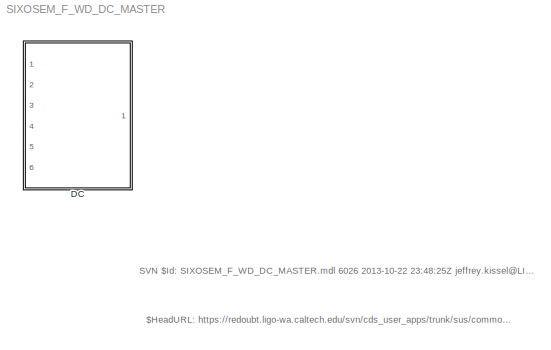
MODEL SIXOSEM_F_WD_DC_MASTER
KIND library
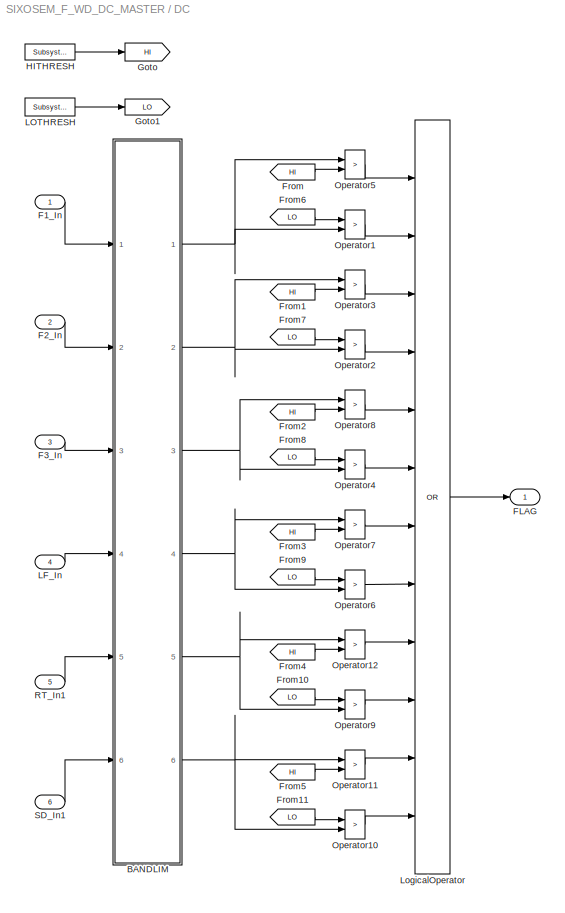
BLOCK [SubSystem] DC
  FunctionWithSeparateData = off
  MaskHideContents = off
  MinAlgLoopOccurrences = off
  Opaque = off
  Ports = [6, 1]
  PropExecContextOutsideSubsystem = off
  RTWSystemCode = Auto
  RequestExecContextInheritance = off
  SID = 1
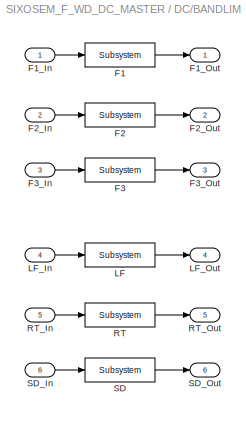
BLOCK [SubSystem] DC/BANDLIM
  FunctionWithSeparateData = off
  MaskHideContents = off
  MinAlgLoopOccurrences = off
  Opaque = off
  Ports = [6, 6]
  PropExecContextOutsideSubsystem = off
  RTWSystemCode = Auto
  RequestExecContextInheritance = off
  SID = 8
BLOCK [Reference] DC/BANDLIM/F1  REF=cdsFilt/Subsystem
  AttributesFormatString = %<Tag>
  Description = Purpose:                                                                                                                                                                                                                                  \nStandard CDS IIR filter module.                                                                                                                                     ...<+1302ch>  <repeated x6 — deduplicated; at blocks: F1, F2, F3, LF, RT, SD>
  FunctionWithSeparateData = off
  Ports = [1, 1]
  RTWMemSecDataConstants = Inherit from model
  RTWMemSecDataInternal = Inherit from model
  RTWMemSecDataParameters = Inherit from model
  RTWMemSecFuncExecute = Inherit from model
  RTWMemSecFuncInitTerm = Inherit from model
  SID = 15
  ShowPortLabels = FromPortIcon
  SourceBlock = cdsFilt/Subsystem
  SourceType = SubSystem
  SystemSampleTime = -1
  Tag = cdsFilt
BLOCK [Inport] DC/BANDLIM/F1_In
  IconDisplay = Port number
  SID = 9
BLOCK [Outport] DC/BANDLIM/F1_Out
  IconDisplay = Port number
  SID = 21
BLOCK [Reference] DC/BANDLIM/F2  REF=cdsFilt/Subsystem
  AttributesFormatString = %<Tag>
  FunctionWithSeparateData = off
  Ports = [1, 1]
  RTWMemSecDataConstants = Inherit from model
  RTWMemSecDataInternal = Inherit from model
  RTWMemSecDataParameters = Inherit from model
  RTWMemSecFuncExecute = Inherit from model
  RTWMemSecFuncInitTerm = Inherit from model
  SID = 16
  ShowPortLabels = FromPortIcon
  SourceBlock = cdsFilt/Subsystem
  SourceType = SubSystem
  SystemSampleTime = -1
  Tag = cdsFilt
BLOCK [Inport] DC/BANDLIM/F2_In
  IconDisplay = Port number
  Port = 2
  SID = 10
BLOCK [Outport] DC/BANDLIM/F2_Out
  IconDisplay = Port number
  Port = 2
  SID = 22
BLOCK [Reference] DC/BANDLIM/F3  REF=cdsFilt/Subsystem
  AttributesFormatString = %<Tag>
  FunctionWithSeparateData = off
  Ports = [1, 1]
  RTWMemSecDataConstants = Inherit from model
  RTWMemSecDataInternal = Inherit from model
  RTWMemSecDataParameters = Inherit from model
  RTWMemSecFuncExecute = Inherit from model
  RTWMemSecFuncInitTerm = Inherit from model
  SID = 17
  ShowPortLabels = FromPortIcon
  SourceBlock = cdsFilt/Subsystem
  SourceType = SubSystem
  SystemSampleTime = -1
  Tag = cdsFilt
BLOCK [Inport] DC/BANDLIM/F3_In
  IconDisplay = Port number
  Port = 3
  SID = 11
BLOCK [Outport] DC/BANDLIM/F3_Out
  IconDisplay = Port number
  Port = 3
  SID = 23
BLOCK [Reference] DC/BANDLIM/LF  REF=cdsFilt/Subsystem
  AttributesFormatString = %<Tag>
  FunctionWithSeparateData = off
  Ports = [1, 1]
  RTWMemSecDataConstants = Inherit from model
  RTWMemSecDataInternal = Inherit from model
  RTWMemSecDataParameters = Inherit from model
  RTWMemSecFuncExecute = Inherit from model
  RTWMemSecFuncInitTerm = Inherit from model
  SID = 18
  ShowPortLabels = FromPortIcon
  SourceBlock = cdsFilt/Subsystem
  SourceType = SubSystem
  SystemSampleTime = -1
  Tag = cdsFilt
BLOCK [Inport] DC/BANDLIM/LF_In
  IconDisplay = Port number
  Port = 4
  SID = 12
BLOCK [Outport] DC/BANDLIM/LF_Out
  IconDisplay = Port number
  Port = 4
  SID = 24
BLOCK [Reference] DC/BANDLIM/RT  REF=cdsFilt/Subsystem
  AttributesFormatString = %<Tag>
  FunctionWithSeparateData = off
  Ports = [1, 1]
  RTWMemSecDataConstants = Inherit from model
  RTWMemSecDataInternal = Inherit from model
  RTWMemSecDataParameters = Inherit from model
  RTWMemSecFuncExecute = Inherit from model
  RTWMemSecFuncInitTerm = Inherit from model
  SID = 19
  ShowPortLabels = FromPortIcon
  SourceBlock = cdsFilt/Subsystem
  SourceType = SubSystem
  SystemSampleTime = -1
  Tag = cdsFilt
BLOCK [Inport] DC/BANDLIM/RT_In
  IconDisplay = Port number
  Port = 5
  SID = 13
BLOCK [Outport] DC/BANDLIM/RT_Out
  IconDisplay = Port number
  Port = 5
  SID = 25
BLOCK [Reference] DC/BANDLIM/SD  REF=cdsFilt/Subsystem
  AttributesFormatString = %<Tag>
  FunctionWithSeparateData = off
  Ports = [1, 1]
  RTWMemSecDataConstants = Inherit from model
  RTWMemSecDataInternal = Inherit from model
  RTWMemSecDataParameters = Inherit from model
  RTWMemSecFuncExecute = Inherit from model
  RTWMemSecFuncInitTerm = Inherit from model
  SID = 20
  ShowPortLabels = FromPortIcon
  SourceBlock = cdsFilt/Subsystem
  SourceType = SubSystem
  SystemSampleTime = -1
  Tag = cdsFilt
BLOCK [Inport] DC/BANDLIM/SD_In
  IconDisplay = Port number
  Port = 6
  SID = 14
BLOCK [Outport] DC/BANDLIM/SD_Out
  IconDisplay = Port number
  Port = 6
  SID = 26
BLOCK [Inport] DC/F1_In
  IconDisplay = Port number
  SID = 2
BLOCK [Inport] DC/F2_In
  IconDisplay = Port number
  Port = 2
  SID = 3
BLOCK [Inport] DC/F3_In
  IconDisplay = Port number
  Port = 3
  SID = 4
BLOCK [Outport] DC/FLAG
  IconDisplay = Port number
  SID = 53
BLOCK [From] DC/From
  CloseFcn = tagdialog Close
  GotoTag = HI
  SID = 81
BLOCK [From] DC/From1
  CloseFcn = tagdialog Close
  GotoTag = HI
  SID = 82
BLOCK [From] DC/From10
  CloseFcn = tagdialog Close
  GotoTag = LO
  SID = 91
BLOCK [From] DC/From11
  CloseFcn = tagdialog Close
  GotoTag = LO
  SID = 92
BLOCK [From] DC/From2
  CloseFcn = tagdialog Close
  GotoTag = HI
  SID = 83
BLOCK [From] DC/From3
  CloseFcn = tagdialog Close
  GotoTag = HI
  SID = 84
BLOCK [From] DC/From4
  CloseFcn = tagdialog Close
  GotoTag = HI
  SID = 85
BLOCK [From] DC/From5
  CloseFcn = tagdialog Close
  GotoTag = HI
  SID = 86
BLOCK [From] DC/From6
  CloseFcn = tagdialog Close
  GotoTag = LO
  SID = 87
BLOCK [From] DC/From7
  CloseFcn = tagdialog Close
  GotoTag = LO
  SID = 88
BLOCK [From] DC/From8
  CloseFcn = tagdialog Close
  GotoTag = LO
  SID = 89
BLOCK [From] DC/From9
  CloseFcn = tagdialog Close
  GotoTag = LO
  SID = 90
BLOCK [Goto] DC/Goto
  GotoTag = HI
  SID = 79
BLOCK [Goto] DC/Goto1
  GotoTag = LO
  SID = 80
BLOCK [Reference] DC/HITHRESH  REF=cdsEpicsIn/Subsystem
  AttributesFormatString = %<Tag>
  Description = Purpose:                                                                              \nCreate an EPICS input channel connection to the FE realtime controls.                 \n                                                                                      \nOperation:                                                                            \nOutputs value from an EPICS ai record. Value is ...<+266ch>
  FunctionWithSeparateData = off
  Ports = [0, 1]
  RTWMemSecDataConstants = Inherit from model
  RTWMemSecDataInternal = Inherit from model
  RTWMemSecDataParameters = Inherit from model
  RTWMemSecFuncExecute = Inherit from model
  RTWMemSecFuncInitTerm = Inherit from model
  SID = 67
  ShowPortLabels = FromPortIcon
  SourceBlock = cdsEpicsIn/Subsystem
  SourceType = SubSystem
  SystemSampleTime = -1
  Tag = cdsEpicsIn
BLOCK [Inport] DC/LF_In
  IconDisplay = Port number
  Port = 4
  SID = 5
BLOCK [Reference] DC/LOTHRESH  REF=cdsEpicsIn/Subsystem
  AttributesFormatString = %<Tag>
  Description = Purpose:                                                                              \nCreate an EPICS input channel connection to the FE realtime controls.                 \n                                                                                      \nOperation:                                                                            \nOutputs value from an EPICS ai record. Value is ...<+266ch>
  FunctionWithSeparateData = off
  Ports = [0, 1]
  RTWMemSecDataConstants = Inherit from model
  RTWMemSecDataInternal = Inherit from model
  RTWMemSecDataParameters = Inherit from model
  RTWMemSecFuncExecute = Inherit from model
  RTWMemSecFuncInitTerm = Inherit from model
  SID = 68
  ShowPortLabels = FromPortIcon
  SourceBlock = cdsEpicsIn/Subsystem
  SourceType = SubSystem
  SystemSampleTime = -1
  Tag = cdsEpicsIn
BLOCK [Logic] DC/LogicalOperator
  AllPortsSameDT = off
  Inputs = 12
  Operator = OR
  OutDataTypeStr = boolean
  Ports = [12, 1]
  SID = 58
BLOCK [RelationalOperator] DC/Operator1
  InputSameDT = off
  Operator = >
  OutDataTypeStr = boolean
  Ports = [2, 1]
  SID = 59
BLOCK [RelationalOperator] DC/Operator10
  InputSameDT = off
  Operator = >
  OutDataTypeStr = boolean
  Ports = [2, 1]
  SID = 74
BLOCK [RelationalOperator] DC/Operator11
  InputSameDT = off
  Operator = >
  OutDataTypeStr = boolean
  Ports = [2, 1]
  SID = 75
BLOCK [RelationalOperator] DC/Operator12
  InputSameDT = off
  Operator = >
  OutDataTypeStr = boolean
  Ports = [2, 1]
  SID = 76
BLOCK [RelationalOperator] DC/Operator2
  InputSameDT = off
  Operator = >
  OutDataTypeStr = boolean
  Ports = [2, 1]
  SID = 60
BLOCK [RelationalOperator] DC/Operator3
  InputSameDT = off
  Operator = >
  OutDataTypeStr = boolean
  Ports = [2, 1]
  SID = 61
BLOCK [RelationalOperator] DC/Operator4
  InputSameDT = off
  Operator = >
  OutDataTypeStr = boolean
  Ports = [2, 1]
  SID = 62
BLOCK [RelationalOperator] DC/Operator5
  InputSameDT = off
  Operator = >
  OutDataTypeStr = boolean
  Ports = [2, 1]
  SID = 63
BLOCK [RelationalOperator] DC/Operator6
  InputSameDT = off
  Operator = >
  OutDataTypeStr = boolean
  Ports = [2, 1]
  SID = 64
BLOCK [RelationalOperator] DC/Operator7
  InputSameDT = off
  Operator = >
  OutDataTypeStr = boolean
  Ports = [2, 1]
  SID = 65
BLOCK [RelationalOperator] DC/Operator8
  InputSameDT = off
  Operator = >
  OutDataTypeStr = boolean
  Ports = [2, 1]
  SID = 66
BLOCK [RelationalOperator] DC/Operator9
  InputSameDT = off
  Operator = >
  OutDataTypeStr = boolean
  Ports = [2, 1]
  SID = 73
BLOCK [Inport] DC/RT_In1
  IconDisplay = Port number
  Port = 5
  SID = 6
BLOCK [Inport] DC/SD_In1
  IconDisplay = Port number
  Port = 6
  SID = 7
ANNOTATION (root): $HeadURL: https://redoubt.ligo-wa.caltech.edu/svn/cds_user_apps/trunk/sus/common/models/SIXOSEM_F_WD_DC_MASTER.mdl $
ANNOTATION (root): SVN $Id: SIXOSEM_F_WD_DC_MASTER.mdl 6026 2013-10-22 23:48:25Z <email> $
LINE DC/BANDLIM/F1:1 -> DC/BANDLIM/F1_Out:1
LINE DC/BANDLIM/F1_In:1 -> DC/BANDLIM/F1:1
LINE DC/BANDLIM/F2:1 -> DC/BANDLIM/F2_Out:1
LINE DC/BANDLIM/F2_In:1 -> DC/BANDLIM/F2:1
LINE DC/BANDLIM/F3:1 -> DC/BANDLIM/F3_Out:1
LINE DC/BANDLIM/F3_In:1 -> DC/BANDLIM/F3:1
LINE DC/BANDLIM/LF:1 -> DC/BANDLIM/LF_Out:1
LINE DC/BANDLIM/LF_In:1 -> DC/BANDLIM/LF:1
LINE DC/BANDLIM/RT:1 -> DC/BANDLIM/RT_Out:1
LINE DC/BANDLIM/RT_In:1 -> DC/BANDLIM/RT:1
LINE DC/BANDLIM/SD:1 -> DC/BANDLIM/SD_Out:1
LINE DC/BANDLIM/SD_In:1 -> DC/BANDLIM/SD:1
NET DC/BANDLIM:1 -> DC/Operator1:2, DC/Operator5:1
NET DC/BANDLIM:2 -> DC/Operator2:2, DC/Operator3:1
NET DC/BANDLIM:3 -> DC/Operator4:2, DC/Operator8:1
NET DC/BANDLIM:4 -> DC/Operator6:2, DC/Operator7:1
NET DC/BANDLIM:5 -> DC/Operator12:1, DC/Operator9:2
NET DC/BANDLIM:6 -> DC/Operator10:2, DC/Operator11:1
LINE DC/F1_In:1 -> DC/BANDLIM:1
LINE DC/F2_In:1 -> DC/BANDLIM:2
LINE DC/F3_In:1 -> DC/BANDLIM:3
LINE DC/From10:1 -> DC/Operator9:1
LINE DC/From11:1 -> DC/Operator10:1
LINE DC/From1:1 -> DC/Operator3:2
LINE DC/From2:1 -> DC/Operator8:2
LINE DC/From3:1 -> DC/Operator7:2
LINE DC/From4:1 -> DC/Operator12:2
LINE DC/From5:1 -> DC/Operator11:2
LINE DC/From6:1 -> DC/Operator1:1
LINE DC/From7:1 -> DC/Operator2:1
LINE DC/From8:1 -> DC/Operator4:1
LINE DC/From9:1 -> DC/Operator6:1
LINE DC/From:1 -> DC/Operator5:2
LINE DC/HITHRESH:1 -> DC/Goto:1
LINE DC/LF_In:1 -> DC/BANDLIM:4
LINE DC/LOTHRESH:1 -> DC/Goto1:1
LINE DC/LogicalOperator:1 -> DC/FLAG:1
LINE DC/Operator10:1 -> DC/LogicalOperator:12
LINE DC/Operator11:1 -> DC/LogicalOperator:11
LINE DC/Operator12:1 -> DC/LogicalOperator:9
LINE DC/Operator1:1 -> DC/LogicalOperator:2
LINE DC/Operator2:1 -> DC/LogicalOperator:4
LINE DC/Operator3:1 -> DC/LogicalOperator:3
LINE DC/Operator4:1 -> DC/LogicalOperator:6
LINE DC/Operator5:1 -> DC/LogicalOperator:1
LINE DC/Operator6:1 -> DC/LogicalOperator:8
LINE DC/Operator7:1 -> DC/LogicalOperator:7
LINE DC/Operator8:1 -> DC/LogicalOperator:5
LINE DC/Operator9:1 -> DC/LogicalOperator:10
LINE DC/RT_In1:1 -> DC/BANDLIM:5
LINE DC/SD_In1:1 -> DC/BANDLIM:6
note: NET lines group one-source signal fan-out (src -> all destinations, sorted); 1:1 wires keep LINE
